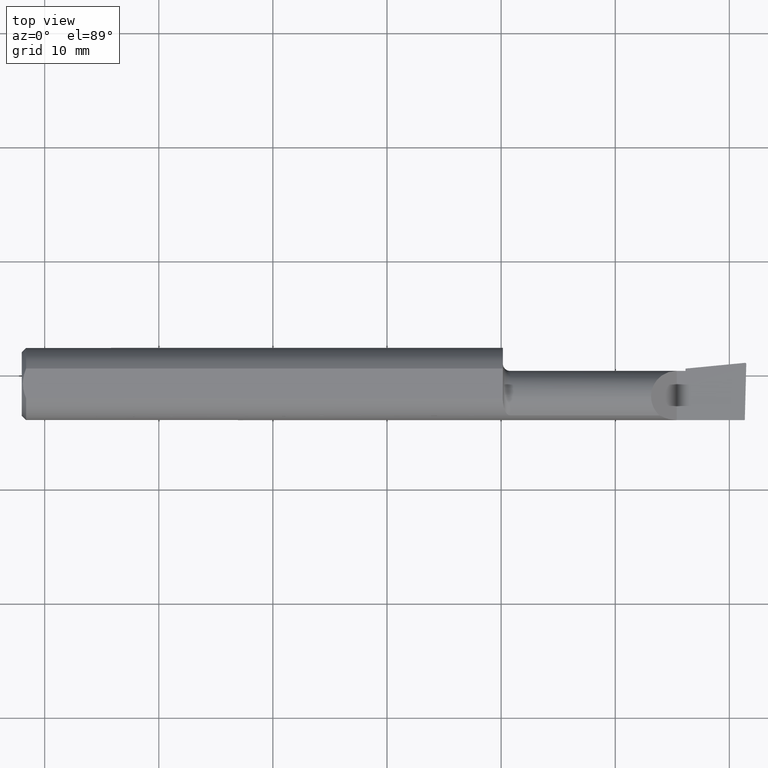
[diagram: clean part render]
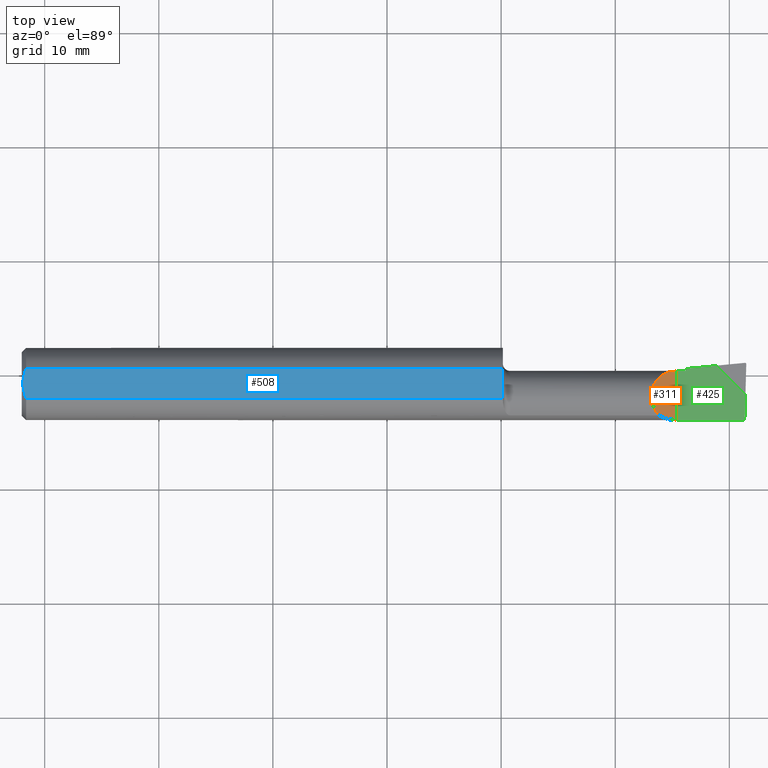
[diagram: same view with three faces highlighted in distinct colors, each labeled with its STEP entity id]
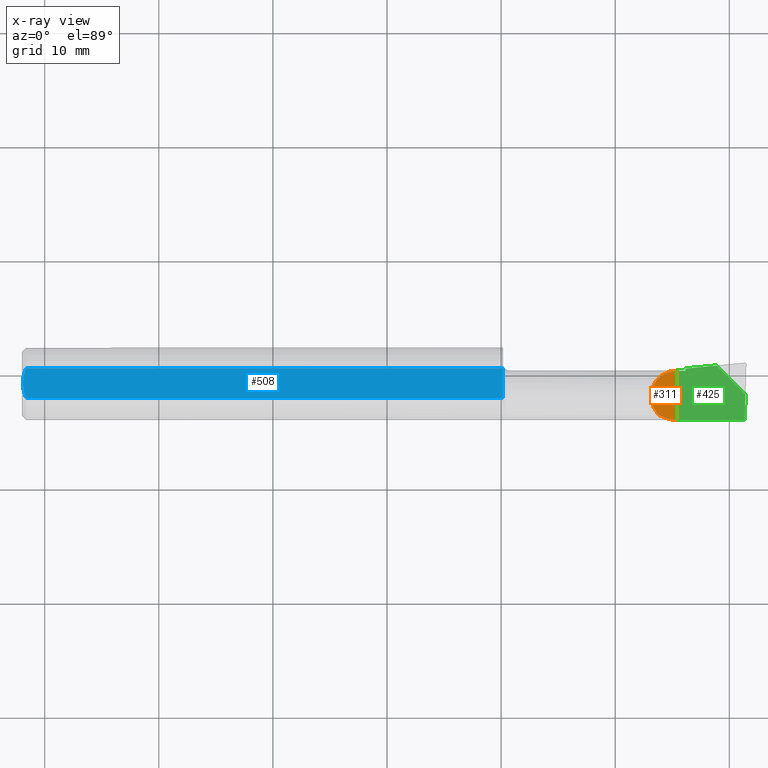
[diagram: x-ray of the same camera — body ghosted, the three highlighted faces saturated]
A machine part, top view with three faces highlighted in distinct colors.
The next image is the same camera in x-ray (body ghosted, the three faces saturated) — at least one of them is partly hidden behind the body in this view.
Their STEP definitions:

[orange] entity #311 — the highlighted planar face has unit normal (-0.7071, 0, -0.7071).
#78 = CARTESIAN_POINT ( 'NONE',  ( 2.200086239175845559, -0.1093425883694413153, 0.06026376082415460522 ) ) ;
#94 = FACE_OUTER_BOUND ( 'NONE', #1129, .T. ) ;
#153 = VECTOR ( 'NONE', #484, 39.37007874015748143 ) ;
#188 = PLANE ( 'NONE',  #902 ) ;
#195 = DIRECTION ( 'NONE',  ( -0.7071067811865475727, 0.000000000000000000, -0.7071067811865475727 ) ) ;
#259 = CARTESIAN_POINT ( 'NONE',  ( 2.218537028253239285, -0.1195116721323033065, 0.04181297174676072009 ) ) ;
#291 = EDGE_CURVE ( 'NONE', #1035, #324, #1109, .T. ) ;
#311 = ADVANCED_FACE ( 'NONE', ( #94 ), #188, .F. ) ;
#318 = CARTESIAN_POINT ( 'NONE',  ( 2.260000000000000231, -0.1248495094103296704, 0.0003499999999999383053 ) ) ;
#324 = VERTEX_POINT ( 'NONE', #398 ) ;
#332 =( BOUNDED_CURVE ( )  B_SPLINE_CURVE ( 3, ( #1181, #851, #259, #78 ),
 .UNSPECIFIED., .F., .T. ) 
 B_SPLINE_CURVE_WITH_KNOTS ( ( 4, 4 ),
 ( 4.715192348093415475, 5.216111826723993872 ),
 .UNSPECIFIED. ) 
 CURVE ( )  GEOMETRIC_REPRESENTATION_ITEM ( )  RATIONAL_B_SPLINE_CURVE ( ( 1.000000000000000000, 0.9791990519953639449, 0.9791990519953639449, 1.000000000000000000 ) ) 
 REPRESENTATION_ITEM ( '' )  );
#333 = CARTESIAN_POINT ( 'NONE',  ( 2.208027827235976570, 0.04494492526557266471, 0.05232217276402370554 ) ) ;
#337 = ORIENTED_EDGE ( 'NONE', *, *, #990, .F. ) ;
#389 = CARTESIAN_POINT ( 'NONE',  ( 2.171349999999999891, -0.04385000000000000009, 0.08899999999999999578 ) ) ;
#398 = CARTESIAN_POINT ( 'NONE',  ( 2.200086239175845559, -0.1093425883694413153, 0.06026376082415460522 ) ) ;
#484 = DIRECTION ( 'NONE',  ( 0.000000000000000000, -1.000000000000000000, 0.000000000000000000 ) ) ;
#588 = CARTESIAN_POINT ( 'NONE',  ( 2.171350000000000335, -0.06910891545235442468, 0.08900000000000000966 ) ) ;
#602 = CARTESIAN_POINT ( 'NONE',  ( 2.171349999999999891, -0.04385000000000000009, 0.08899999999999999578 ) ) ;
#659 = VERTEX_POINT ( 'NONE', #318 ) ;
#673 = CARTESIAN_POINT ( 'NONE',  ( 2.260000000000000231, 0.1499999999999999944, 0.0003499999999999638925 ) ) ;
#683 = EDGE_CURVE ( 'NONE', #924, #1035, #917, .T. ) ;
#699 = ORIENTED_EDGE ( 'NONE', *, *, #291, .T. ) ;
#720 = CARTESIAN_POINT ( 'NONE',  ( 2.171350000000000335, 0.008122574649203021663, 0.08900000000000000966 ) ) ;
#837 = EDGE_CURVE ( 'NONE', #659, #324, #332, .T. ) ;
#851 = CARTESIAN_POINT ( 'NONE',  ( 2.238932527582364163, -0.1247904493837345002, 0.02141747241763543308 ) ) ;
#899 = CARTESIAN_POINT ( 'NONE',  ( 2.146500000000000075, 0.1000000000000000056, 0.1138500000000000068 ) ) ;
#902 = AXIS2_PLACEMENT_3D ( 'NONE', #899, #195, #1003 ) ;
#917 =( BOUNDED_CURVE ( )  B_SPLINE_CURVE ( 3, ( #942, #333, #720, #1131 ),
 .UNSPECIFIED., .F., .T. ) 
 B_SPLINE_CURVE_WITH_KNOTS ( ( 4, 4 ),
 ( 4.716321574790802273, 6.283185307179586232 ),
 .UNSPECIFIED. ) 
 CURVE ( )  GEOMETRIC_REPRESENTATION_ITEM ( )  RATIONAL_B_SPLINE_CURVE ( ( 1.000000000000000000, 0.8056638636166326695, 0.8056638636166326695, 1.000000000000000000 ) ) 
 REPRESENTATION_ITEM ( '' )  );
#924 = VERTEX_POINT ( 'NONE', #1283 ) ;
#942 = CARTESIAN_POINT ( 'NONE',  ( 2.260000000000000231, 0.04514931179509204529, 0.0003499999999999638925 ) ) ;
#990 = EDGE_CURVE ( 'NONE', #924, #659, #1196, .T. ) ;
#1003 = DIRECTION ( 'NONE',  ( -0.7071067811865474617, 0.000000000000000000, 0.7071067811865474617 ) ) ;
#1009 = ORIENTED_EDGE ( 'NONE', *, *, #837, .F. ) ;
#1016 = CARTESIAN_POINT ( 'NONE',  ( 2.200086239175845559, -0.1093425883694413153, 0.06026376082415460522 ) ) ;
#1035 = VERTEX_POINT ( 'NONE', #389 ) ;
#1109 =( BOUNDED_CURVE ( )  B_SPLINE_CURVE ( 3, ( #602, #588, #1315, #1016 ),
 .UNSPECIFIED., .F., .F. ) 
 B_SPLINE_CURVE_WITH_KNOTS ( ( 4, 4 ),
 ( 0.000000000000000000, 0.8269532615970618394 ),
 .UNSPECIFIED. ) 
 CURVE ( )  GEOMETRIC_REPRESENTATION_ITEM ( )  RATIONAL_B_SPLINE_CURVE ( ( 1.000000000000000000, 0.9438196436970134329, 0.9438196436970134329, 1.000000000000000000 ) ) 
 REPRESENTATION_ITEM ( '' )  );
#1129 = EDGE_LOOP ( 'NONE', ( #337, #1223, #699, #1009 ) ) ;
#1131 = CARTESIAN_POINT ( 'NONE',  ( 2.171349999999999891, -0.04385000000000000009, 0.08899999999999999578 ) ) ;
#1181 = CARTESIAN_POINT ( 'NONE',  ( 2.260000000000000231, -0.1248495094103296704, 0.0003499999999999383053 ) ) ;
#1196 = LINE ( 'NONE', #673, #153 ) ;
#1223 = ORIENTED_EDGE ( 'NONE', *, *, #683, .T. ) ;
#1283 = CARTESIAN_POINT ( 'NONE',  ( 2.260000000000000231, 0.04514931179509204529, 0.0003499999999999638925 ) ) ;
#1315 = CARTESIAN_POINT ( 'NONE',  ( 2.181498916115400810, -0.09223924859979841517, 0.07885108388459918793 ) ) ;

[blue] entity #508 — the highlighted planar face has unit normal (0, 0, -1).
#4 = EDGE_CURVE ( 'NONE', #16, #579, #34, .T. ) ;
#16 = VERTEX_POINT ( 'NONE', #1185 ) ;
#27 = CARTESIAN_POINT ( 'NONE',  ( 0.003999999999982063043, -1.276290005483319770E-15, 0.1138500000000000068 ) ) ;
#34 = LINE ( 'NONE', #1261, #127 ) ;
#45 = EDGE_CURVE ( 'NONE', #16, #731, #1194, .T. ) ;
#49 = CARTESIAN_POINT ( 'NONE',  ( 0.003999999999999693037, -0.008848600531297693209, 0.1138500000000000068 ) ) ;
#98 = VECTOR ( 'NONE', #863, 39.37007874015748143 ) ;
#127 = VECTOR ( 'NONE', #433, 39.37007874015748143 ) ;
#130 = CARTESIAN_POINT ( 'NONE',  ( 0.005080301127455556266, -0.01778481300359936734, 0.1138500000000000206 ) ) ;
#137 = DIRECTION ( 'NONE',  ( 0.000000000000000000, -1.000000000000000000, 0.000000000000000000 ) ) ;
#139 = ORIENTED_EDGE ( 'NONE', *, *, #1274, .F. ) ;
#171 = VECTOR ( 'NONE', #880, 39.37007874015748143 ) ;
#176 = CARTESIAN_POINT ( 'NONE',  ( 0.01499999999999915637, 0.05124158467494929065, 0.1138500000000000068 ) ) ;
#177 = EDGE_LOOP ( 'NONE', ( #948, #424, #750, #901, #590, #139, #894 ) ) ;
#231 = PLANE ( 'NONE',  #317 ) ;
#250 = DIRECTION ( 'NONE',  ( -1.000000000000000000, -0.000000000000000000, -0.000000000000000000 ) ) ;
#261 = CARTESIAN_POINT ( 'NONE',  ( 0.01499999999999915637, -0.05124158467494927677, 0.1138500000000000068 ) ) ;
#279 = CARTESIAN_POINT ( 'NONE',  ( 2.500000000000000000, -0.05124158467494927677, 0.1138500000000000068 ) ) ;
#281 = EDGE_CURVE ( 'NONE', #579, #465, #490, .T. ) ;
#289 = CARTESIAN_POINT ( 'NONE',  ( 1.660000000000000364, 0.1000000000000000056, 0.1138500000000000068 ) ) ;
#317 = AXIS2_PLACEMENT_3D ( 'NONE', #927, #1140, #909 ) ;
#359 = CARTESIAN_POINT ( 'NONE',  ( 0.003999999999999200376, 0.008800694614867361418, 0.1138500000000000068 ) ) ;
#419 = CARTESIAN_POINT ( 'NONE',  ( 0.003999999999982063043, -1.276290005483319770E-15, 0.1138500000000000068 ) ) ;
#424 = ORIENTED_EDGE ( 'NONE', *, *, #4, .F. ) ;
#433 = DIRECTION ( 'NONE',  ( 1.000000000000000000, 0.000000000000000000, 0.000000000000000000 ) ) ;
#439 = CARTESIAN_POINT ( 'NONE',  ( 0.008925039223039424666, -0.03485448893270374354, 0.1138499999999999790 ) ) ;
#451 = LINE ( 'NONE', #279, #1127 ) ;
#465 = VERTEX_POINT ( 'NONE', #607 ) ;
#490 = LINE ( 'NONE', #289, #171 ) ;
#508 = ADVANCED_FACE ( 'NONE', ( #635 ), #231, .F. ) ;
#526 = VECTOR ( 'NONE', #137, 39.37007874015748143 ) ;
#528 = CARTESIAN_POINT ( 'NONE',  ( 0.01167347033176660553, -0.04313650299737418342, 0.1138500000000000068 ) ) ;
#557 = LINE ( 'NONE', #968, #98 ) ;
#579 = VERTEX_POINT ( 'NONE', #745 ) ;
#590 = ORIENTED_EDGE ( 'NONE', *, *, #883, .F. ) ;
#607 = CARTESIAN_POINT ( 'NONE',  ( 1.660000000000000364, -0.03800384741902852054, 0.1138500000000000068 ) ) ;
#616 = VERTEX_POINT ( 'NONE', #261 ) ;
#635 = FACE_OUTER_BOUND ( 'NONE', #177, .T. ) ;
#665 = CARTESIAN_POINT ( 'NONE',  ( 0.01167190377471788269, 0.04313268608482605931, 0.1138500000000000068 ) ) ;
#731 = VERTEX_POINT ( 'NONE', #419 ) ;
#745 = CARTESIAN_POINT ( 'NONE',  ( 1.660000000000000364, 0.05124158467494929065, 0.1138500000000000068 ) ) ;
#750 = ORIENTED_EDGE ( 'NONE', *, *, #45, .T. ) ;
#767 = VERTEX_POINT ( 'NONE', #824 ) ;
#768 = CARTESIAN_POINT ( 'NONE',  ( 1.660000000000000364, -0.04969615258097146576, 0.1138500000000000068 ) ) ;
#780 = B_SPLINE_CURVE_WITH_KNOTS ( 'NONE', 3,
 ( #27, #49, #130, #439, #528, #840 ),
 .UNSPECIFIED., .F., .F.,
 ( 4, 2, 4 ),
 ( 0.002543458196361383060, 0.003213918189955207883, 0.003884378183549032706 ),
 .UNSPECIFIED. ) ;
#824 = CARTESIAN_POINT ( 'NONE',  ( 1.660000000000000364, -0.05124158467494927677, 0.1138500000000000068 ) ) ;
#833 = LINE ( 'NONE', #1253, #526 ) ;
#840 = CARTESIAN_POINT ( 'NONE',  ( 0.01499999999999915637, -0.05124158467494927677, 0.1138500000000000068 ) ) ;
#855 = CARTESIAN_POINT ( 'NONE',  ( 0.008866562462786909196, 0.03466860267591459488, 0.1138500000000000206 ) ) ;
#863 = DIRECTION ( 'NONE',  ( 0.000000000000000000, -1.000000000000000000, 0.000000000000000000 ) ) ;
#880 = DIRECTION ( 'NONE',  ( 0.000000000000000000, -1.000000000000000000, 0.000000000000000000 ) ) ;
#883 = EDGE_CURVE ( 'NONE', #767, #616, #451, .T. ) ;
#894 = ORIENTED_EDGE ( 'NONE', *, *, #920, .F. ) ;
#901 = ORIENTED_EDGE ( 'NONE', *, *, #1165, .T. ) ;
#909 = DIRECTION ( 'NONE',  ( -1.000000000000000000, 0.000000000000000000, 0.000000000000000000 ) ) ;
#920 = EDGE_CURVE ( 'NONE', #465, #957, #557, .T. ) ;
#927 = CARTESIAN_POINT ( 'NONE',  ( 0.000000000000000000, 0.1000000000000000056, 0.1138500000000000068 ) ) ;
#948 = ORIENTED_EDGE ( 'NONE', *, *, #281, .F. ) ;
#957 = VERTEX_POINT ( 'NONE', #768 ) ;
#968 = CARTESIAN_POINT ( 'NONE',  ( 1.660000000000000364, 0.1000000000000000056, 0.1138500000000000068 ) ) ;
#1127 = VECTOR ( 'NONE', #250, 39.37007874015748143 ) ;
#1140 = DIRECTION ( 'NONE',  ( -0.000000000000000000, 0.000000000000000000, -1.000000000000000000 ) ) ;
#1165 = EDGE_CURVE ( 'NONE', #731, #616, #780, .T. ) ;
#1177 = CARTESIAN_POINT ( 'NONE',  ( 0.003999999999982063043, -1.276290005483319770E-15, 0.1138500000000000068 ) ) ;
#1185 = CARTESIAN_POINT ( 'NONE',  ( 0.01499999999999915637, 0.05124158467494929065, 0.1138500000000000068 ) ) ;
#1194 = B_SPLINE_CURVE_WITH_KNOTS ( 'NONE', 3,
 ( #176, #665, #855, #1281, #359, #1177 ),
 .UNSPECIFIED., .F., .F.,
 ( 4, 2, 4 ),
 ( 0.001209797888329806285, 0.001876628042345594672, 0.002543458196361383060 ),
 .UNSPECIFIED. ) ;
#1253 = CARTESIAN_POINT ( 'NONE',  ( 1.660000000000000364, 0.1000000000000000056, 0.1138500000000000068 ) ) ;
#1261 = CARTESIAN_POINT ( 'NONE',  ( 2.500000000000000000, 0.05124158467494929065, 0.1138500000000000068 ) ) ;
#1274 = EDGE_CURVE ( 'NONE', #957, #767, #833, .T. ) ;
#1281 = CARTESIAN_POINT ( 'NONE',  ( 0.005030588787081021786, 0.01748826716933454817, 0.1138499999999999790 ) ) ;

[green] entity #425 — the highlighted planar face has unit normal (0, 0, -1).
#19 = DIRECTION ( 'NONE',  ( -0.000000000000000000, 0.000000000000000000, -1.000000000000000000 ) ) ;
#80 = CARTESIAN_POINT ( 'NONE',  ( 2.494776250492609648, -0.1248499999999999610, -1.707404996040164512E-17 ) ) ;
#86 = CARTESIAN_POINT ( 'NONE',  ( 2.290000000000000036, 0.04514999999999999569, -3.414809992080329023E-17 ) ) ;
#122 = CARTESIAN_POINT ( 'NONE',  ( 2.260000000000000231, 0.1499999999999999944, -3.414809992080329023E-17 ) ) ;
#126 = CARTESIAN_POINT ( 'NONE',  ( 2.290000000000000036, 0.1499999999999999944, -3.414809992080329023E-17 ) ) ;
#138 = VERTEX_POINT ( 'NONE', #86 ) ;
#158 = DIRECTION ( 'NONE',  ( -1.000000000000000000, -0.000000000000000000, -0.000000000000000000 ) ) ;
#191 = AXIS2_PLACEMENT_3D ( 'NONE', #839, #19, #1235 ) ;
#196 = VERTEX_POINT ( 'NONE', #80 ) ;
#226 = VERTEX_POINT ( 'NONE', #798 ) ;
#242 = VERTEX_POINT ( 'NONE', #795 ) ;
#253 = CARTESIAN_POINT ( 'NONE',  ( 2.501859157066409711, 0.1436191330677595301, -3.414809992080329023E-17 ) ) ;
#296 = VECTOR ( 'NONE', #950, 39.37007874015748143 ) ;
#336 = FACE_OUTER_BOUND ( 'NONE', #567, .T. ) ;
#344 = DIRECTION ( 'NONE',  ( -0.9953961983671786307, -0.09584575252022477232, 0.000000000000000000 ) ) ;
#347 = ORIENTED_EDGE ( 'NONE', *, *, #406, .F. ) ;
#387 = VERTEX_POINT ( 'NONE', #422 ) ;
#405 = EDGE_CURVE ( 'NONE', #387, #226, #1126, .T. ) ;
#406 = EDGE_CURVE ( 'NONE', #242, #544, #1252, .T. ) ;
#415 = DIRECTION ( 'NONE',  ( 0.7071067811865525687, -0.7071067811865424657, -0.000000000000000000 ) ) ;
#422 = CARTESIAN_POINT ( 'NONE',  ( 2.260000000000000231, -0.1248499999999999610, -3.414809992080329023E-17 ) ) ;
#425 = ADVANCED_FACE ( 'NONE', ( #336 ), #921, .F. ) ;
#455 = LINE ( 'NONE', #854, #804 ) ;
#474 = VECTOR ( 'NONE', #344, 39.37007874015748854 ) ;
#483 = ORIENTED_EDGE ( 'NONE', *, *, #1291, .T. ) ;
#524 = CARTESIAN_POINT ( 'NONE',  ( 1.660000000000000364, 0.04514999999999999569, -3.414809992080329023E-17 ) ) ;
#542 = DIRECTION ( 'NONE',  ( 0.02637339639455550319, 0.9996521614854917415, 0.000000000000000000 ) ) ;
#544 = VERTEX_POINT ( 'NONE', #1267 ) ;
#548 = VECTOR ( 'NONE', #415, 39.37007874015748143 ) ;
#567 = EDGE_LOOP ( 'NONE', ( #483, #347, #999, #828, #803, #870, #1061 ) ) ;
#629 = DIRECTION ( 'NONE',  ( -0.000000000000000000, 1.000000000000000000, -0.000000000000000000 ) ) ;
#662 = EDGE_CURVE ( 'NONE', #226, #138, #1249, .T. ) ;
#677 = VECTOR ( 'NONE', #542, 39.37007874015748143 ) ;
#788 = EDGE_CURVE ( 'NONE', #138, #1135, #1044, .T. ) ;
#795 = CARTESIAN_POINT ( 'NONE',  ( 2.397014310919834301, 0.06323360602050331902, 0.000000000000000000 ) ) ;
#798 = CARTESIAN_POINT ( 'NONE',  ( 2.260000000000000231, 0.04514999999999997488, -3.414809992080329023E-17 ) ) ;
#803 = ORIENTED_EDGE ( 'NONE', *, *, #662, .F. ) ;
#804 = VECTOR ( 'NONE', #158, 39.37007874015748143 ) ;
#828 = ORIENTED_EDGE ( 'NONE', *, *, #788, .F. ) ;
#839 = CARTESIAN_POINT ( 'NONE',  ( 2.260000000000000231, 0.1499999999999999944, -3.414809992080329023E-17 ) ) ;
#854 = CARTESIAN_POINT ( 'NONE',  ( 2.500000000000000000, -0.1248500000000000026, -3.414809992080329023E-17 ) ) ;
#870 = ORIENTED_EDGE ( 'NONE', *, *, #405, .F. ) ;
#921 = PLANE ( 'NONE',  #191 ) ;
#950 = DIRECTION ( 'NONE',  ( 0.000000000000000000, 1.000000000000000000, 0.000000000000000000 ) ) ;
#955 = CARTESIAN_POINT ( 'NONE',  ( 2.269536573633624155, 0.05095889603083809255, -3.414809992080329023E-17 ) ) ;
#959 = VECTOR ( 'NONE', #1056, 39.37007874015748143 ) ;
#972 = LINE ( 'NONE', #955, #474 ) ;
#999 = ORIENTED_EDGE ( 'NONE', *, *, #1210, .T. ) ;
#1015 = VECTOR ( 'NONE', #629, 39.37007874015748143 ) ;
#1044 = LINE ( 'NONE', #126, #296 ) ;
#1056 = DIRECTION ( 'NONE',  ( 1.000000000000000000, 0.000000000000000000, 0.000000000000000000 ) ) ;
#1061 = ORIENTED_EDGE ( 'NONE', *, *, #1318, .F. ) ;
#1126 = LINE ( 'NONE', #122, #1015 ) ;
#1135 = VERTEX_POINT ( 'NONE', #1245 ) ;
#1210 = EDGE_CURVE ( 'NONE', #242, #1135, #972, .T. ) ;
#1235 = DIRECTION ( 'NONE',  ( -1.000000000000000000, 0.000000000000000000, 0.000000000000000000 ) ) ;
#1245 = CARTESIAN_POINT ( 'NONE',  ( 2.290000000000000036, 0.05292929987851685558, -3.414809992080329023E-17 ) ) ;
#1249 = LINE ( 'NONE', #524, #959 ) ;
#1252 = LINE ( 'NONE', #1258, #548 ) ;
#1258 = CARTESIAN_POINT ( 'NONE',  ( 2.500000000000000444, -0.03975208305966135280, 0.000000000000000000 ) ) ;
#1267 = CARTESIAN_POINT ( 'NONE',  ( 2.497097916940338891, -0.03684999999999957060, 0.000000000000000000 ) ) ;
#1280 = LINE ( 'NONE', #253, #677 ) ;
#1291 = EDGE_CURVE ( 'NONE', #196, #544, #1280, .T. ) ;
#1318 = EDGE_CURVE ( 'NONE', #196, #387, #455, .T. ) ;